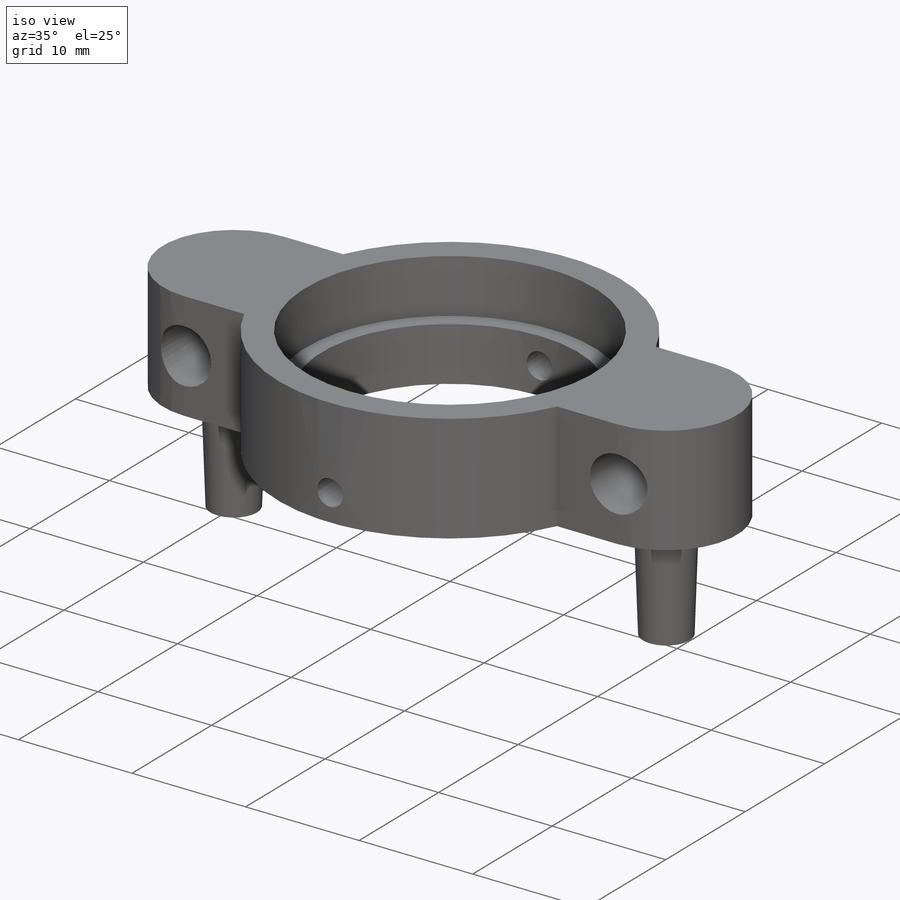
[diagram: iso view]
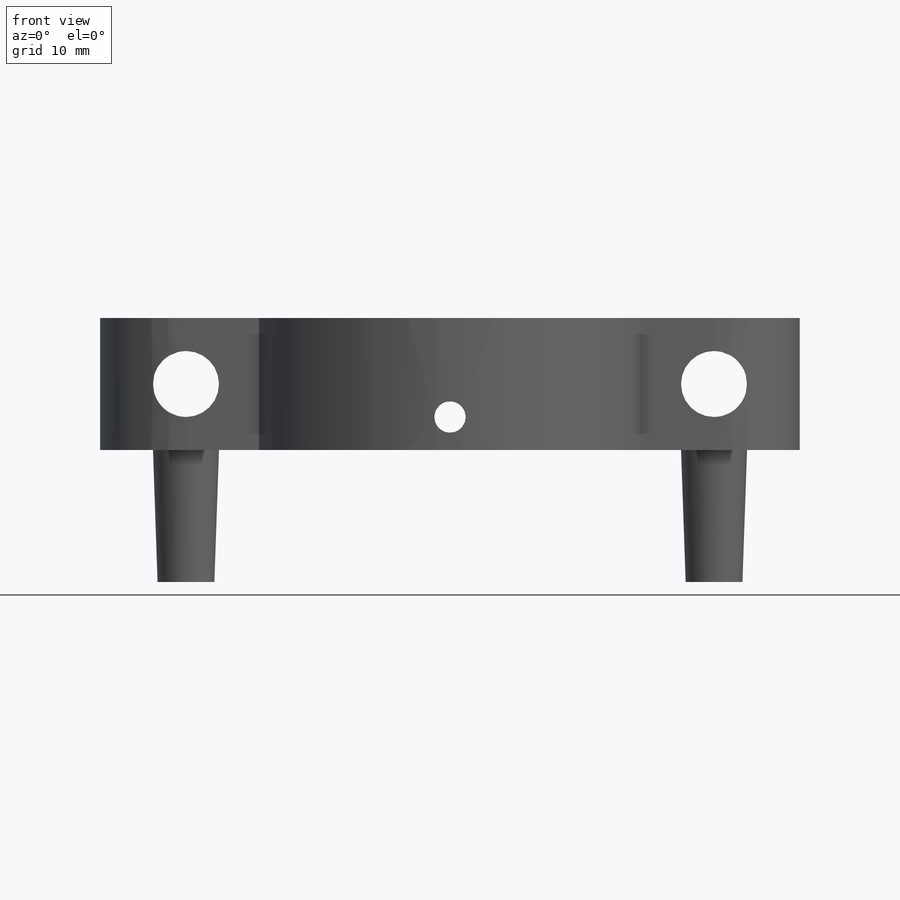
[diagram: front view]
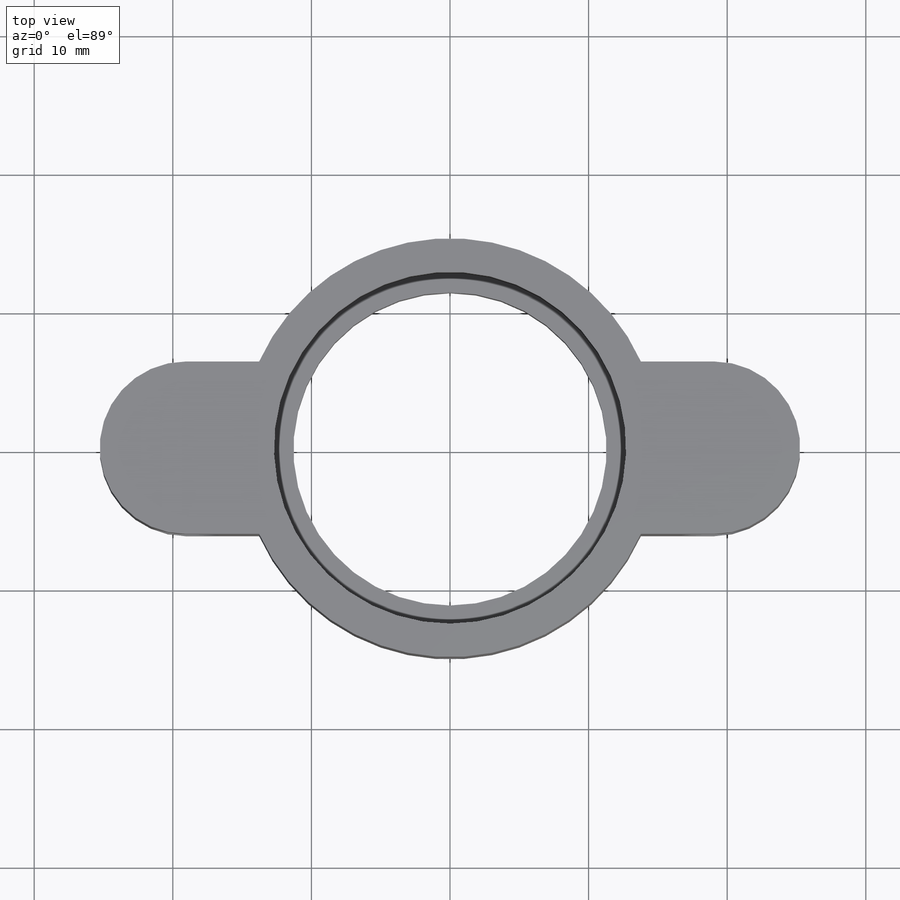
[diagram: top view]
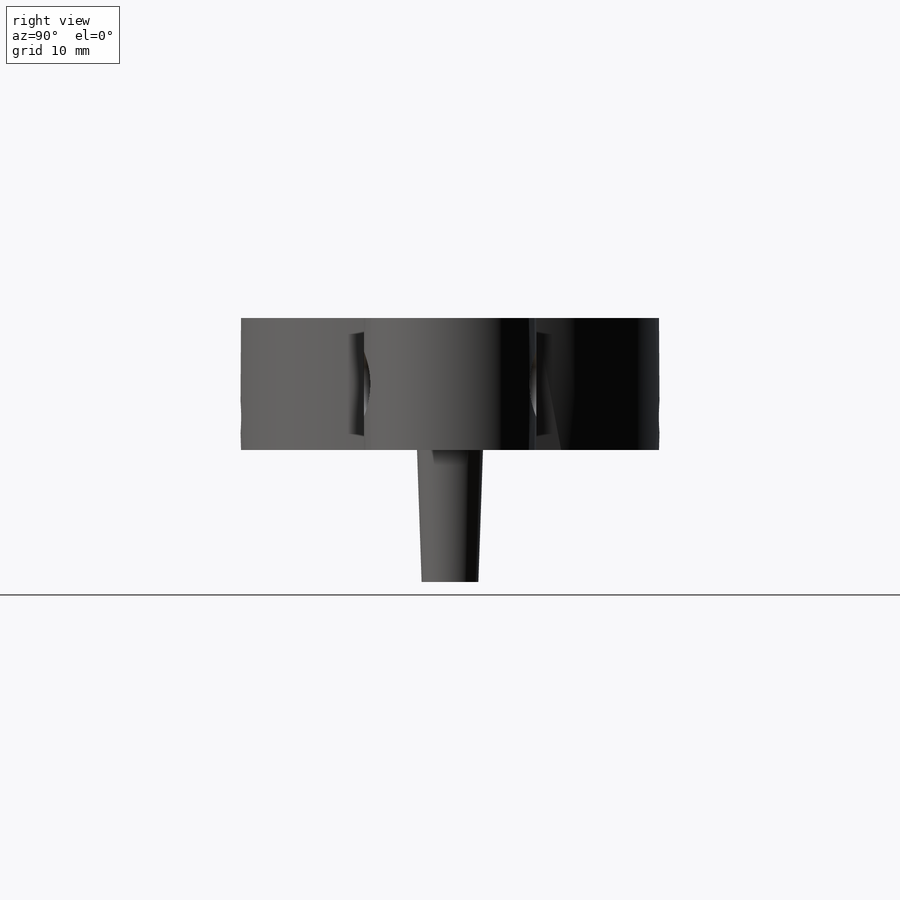
[diagram: right view]
SOLIDWORKS PART (.sldprt)
format: sldprt  version: not decoded by parser v0  size: 282,112 bytes
history: native  units: mm
features: sketch x9, hole x3, extrude x2, plane x2, material x1, pattern_circular x1, cut_extrude x1 (+11 scaffold rows collapsed)
feature tree (30):
  scaffold x11  (default folders/planes/origin — collapsed)
  material  "Material <not specified>"
  sketch  "Sketch1"  dims[c1.D1=22.606mm c1.D2=22.606mm c1.D3=4.826mm c1.D4=~6.040307mm c1.D6=~10.046638mm c1.D7=15.113mm c2.D2=3.81mm c2.D4=19.05mm c2.D5=19.05mm c2.D6=3.81mm c2.D7=~6.812112mm]
  extrude  "Boss-Extrude1"  Depth=9.525mm
  plane  "Plane1"
  hole  "#4-40 Tapped Hole1"  Diameter=2.2606mm Depth=30.226mm
  sketch  "Sketch3"  dims[D1=~2.38125mm]
  sketch  "Sketch4"  dims[hole-wizard template sketch: 60 standard entries collapsed; hole parameters kept: c18.Thru Tap Drill Depth=30.226mm]
  plane  "Plane2"
  hole  "#4-40 Tapped Hole3"  Diameter=2.2606mm Depth=9.525mm
  sketch  "Sketch8"  dims[D1=12.7mm]
  sketch  "Sketch9"  dims[hole-wizard template sketch: 60 standard entries collapsed; hole parameters kept: c18.Thru Tap Drill Depth=9.525mm]
  pattern_circular  "CirPattern1"  Count=6 Angle=360deg
  sketch  "Sketch10"  dims[D1=4.7625mm]
  extrude  "Boss-Extrude2"  Depth=9.525mm
  hole  "3/16 (0.1875) Diameter Hole1"  Diameter=4.7625mm Depth=25.4mm
  sketch  "Sketch12"
  sketch  "Sketch13"  dims[hole-wizard template sketch: 47 standard entries collapsed; hole parameters kept: c15.Hole Depth=25.4mm c15.D3=~14.816244mm c15.Drill Angle=118.0deg]
  sketch  "Sketch14"  dims[D1=25.4mm]
  cut_extrude  "Cut-Extrude1"  Depth=4.7625mm
decode coverage: 15 of 16 modeling features carry decoded parameters
note: ~ marks probable driven/reference dimensions
note: suppression state not decoded; provenance and decode notes live in map.json
